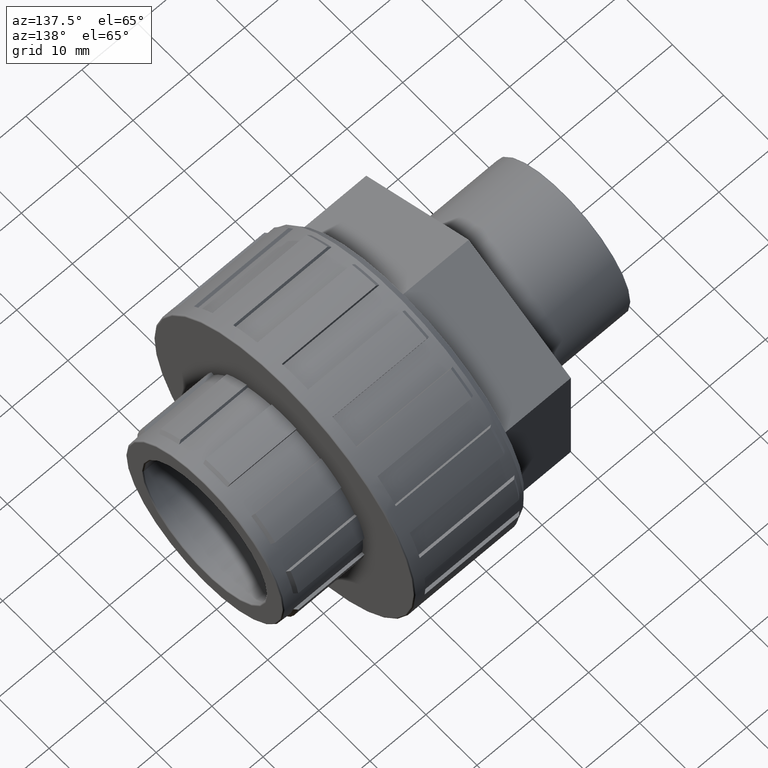
[diagram: clean part render]
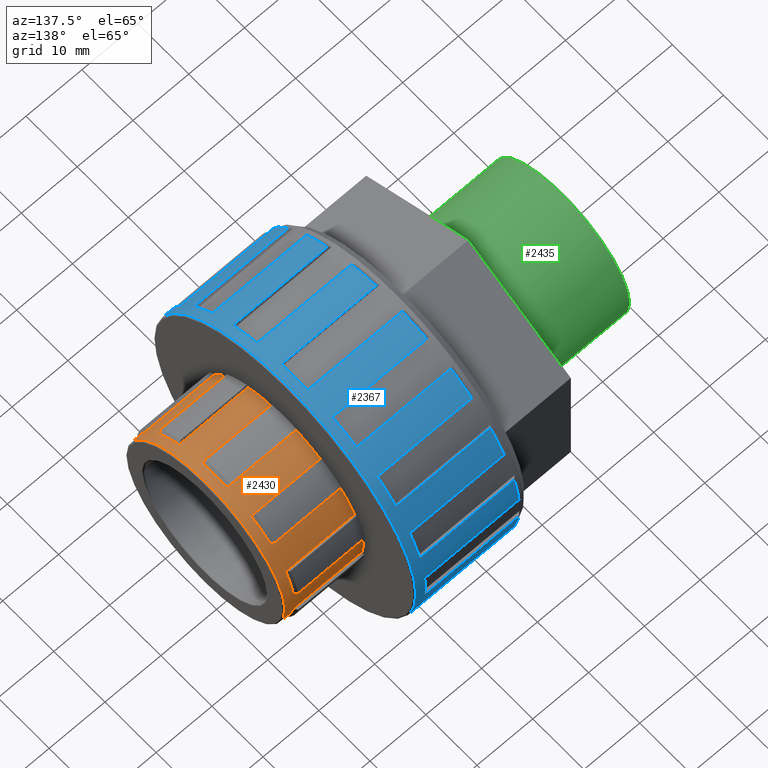
[diagram: same view with three faces highlighted in distinct colors, each labeled with its STEP entity id]
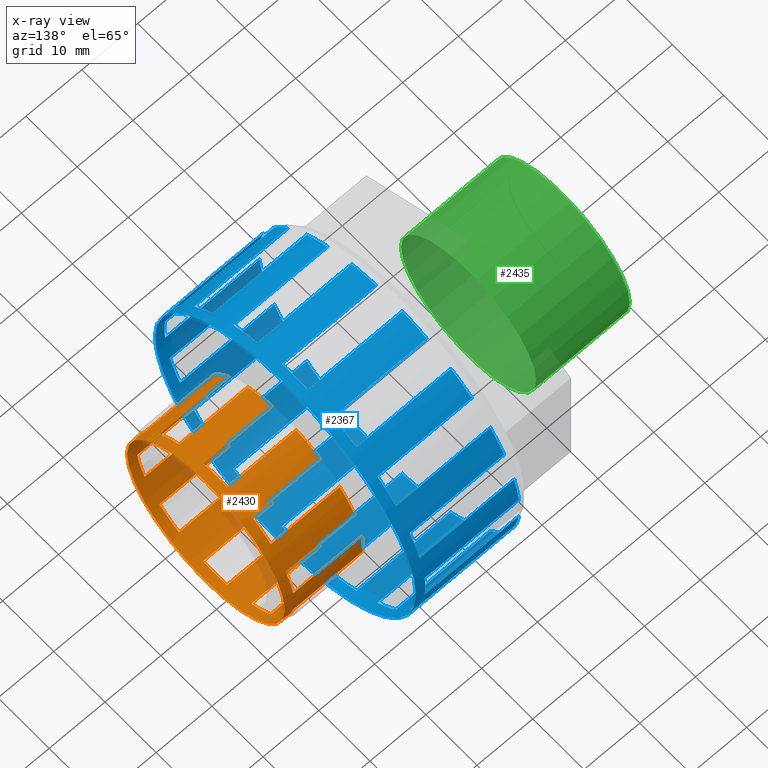
[diagram: x-ray of the same camera — body ghosted, the three highlighted faces saturated]
A machine part, auxiliary view with three faces highlighted in distinct colors.
The next image is the same camera in x-ray (body ghosted, the three faces saturated) — at least one of them is partly hidden behind the body in this view.
Their STEP definitions:

[orange] entity #2430 — the highlighted cylindrical surface (bore or boss wall) has radius 15.4349 mm, axis along (-1, -0, 0).
#54=FACE_BOUND('',#464,.T.);
#81=CYLINDRICAL_SURFACE('',#2674,15.43488);
#169=CIRCLE('',#2629,15.43488);
#170=CIRCLE('',#2631,15.43488);
#171=CIRCLE('',#2633,15.43488);
#172=CIRCLE('',#2635,15.43488);
#173=CIRCLE('',#2637,15.43488);
#174=CIRCLE('',#2639,15.43488);
#175=CIRCLE('',#2641,15.43488);
#176=CIRCLE('',#2643,15.43488);
#177=CIRCLE('',#2645,15.43488);
#179=CIRCLE('',#2648,15.43488);
#182=CIRCLE('',#2655,15.43488);
#183=CIRCLE('',#2656,15.43488);
#184=CIRCLE('',#2657,15.43488);
#185=CIRCLE('',#2658,15.43488);
#186=CIRCLE('',#2659,15.43488);
#187=CIRCLE('',#2660,15.43488);
#188=CIRCLE('',#2661,15.43488);
#189=CIRCLE('',#2662,15.43488);
#190=CIRCLE('',#2663,15.43488);
#191=CIRCLE('',#2664,15.43488);
#196=CIRCLE('',#2673,15.43488);
#324=FACE_OUTER_BOUND('',#463,.T.);
#463=EDGE_LOOP('',(#2080,#2081,#2082,#2083,#2084,#2085,#2086,#2087,#2088,
#2089,#2090,#2091,#2092,#2093,#2094,#2095,#2096,#2097,#2098,#2099,#2100,
#2101,#2102,#2103,#2104,#2105,#2106,#2107,#2108,#2109,#2110,#2111,#2112,
#2113,#2114,#2115,#2116,#2117,#2118,#2119));
#464=EDGE_LOOP('',(#2120));
#643=LINE('',#3869,#869);
#645=LINE('',#3875,#871);
#651=LINE('',#3887,#877);
#653=LINE('',#3893,#879);
#659=LINE('',#3905,#885);
#661=LINE('',#3911,#887);
#667=LINE('',#3923,#893);
#669=LINE('',#3929,#895);
#675=LINE('',#3941,#901);
#677=LINE('',#3947,#903);
#683=LINE('',#3959,#909);
#685=LINE('',#3965,#911);
#691=LINE('',#3977,#917);
#693=LINE('',#3983,#919);
#699=LINE('',#3995,#925);
#701=LINE('',#4001,#927);
#707=LINE('',#4013,#933);
#709=LINE('',#4019,#935);
#716=LINE('',#4085,#942);
#719=LINE('',#4118,#945);
#869=VECTOR('',#3122,12.35);
#871=VECTOR('',#3126,12.35);
#877=VECTOR('',#3134,12.35);
#879=VECTOR('',#3138,12.35);
#885=VECTOR('',#3146,12.35);
#887=VECTOR('',#3150,12.35);
#893=VECTOR('',#3158,12.35);
#895=VECTOR('',#3162,12.35);
#901=VECTOR('',#3170,12.35);
#903=VECTOR('',#3174,12.35);
#909=VECTOR('',#3182,12.35);
#911=VECTOR('',#3186,12.35);
#917=VECTOR('',#3194,12.35);
#919=VECTOR('',#3198,12.35);
#925=VECTOR('',#3206,12.35);
#927=VECTOR('',#3210,12.35);
#933=VECTOR('',#3218,12.35);
#935=VECTOR('',#3222,12.35);
#942=VECTOR('',#3331,12.35);
#945=VECTOR('',#3380,12.35);
#1089=VERTEX_POINT('',#3863);
#1091=VERTEX_POINT('',#3867);
#1092=VERTEX_POINT('',#3871);
#1094=VERTEX_POINT('',#3874);
#1097=VERTEX_POINT('',#3881);
#1099=VERTEX_POINT('',#3885);
#1100=VERTEX_POINT('',#3889);
#1102=VERTEX_POINT('',#3892);
#1105=VERTEX_POINT('',#3899);
#1107=VERTEX_POINT('',#3903);
#1108=VERTEX_POINT('',#3907);
#1110=VERTEX_POINT('',#3910);
#1113=VERTEX_POINT('',#3917);
#1115=VERTEX_POINT('',#3921);
#1116=VERTEX_POINT('',#3925);
#1118=VERTEX_POINT('',#3928);
#1121=VERTEX_POINT('',#3935);
#1123=VERTEX_POINT('',#3939);
#1124=VERTEX_POINT('',#3943);
#1126=VERTEX_POINT('',#3946);
#1129=VERTEX_POINT('',#3953);
#1131=VERTEX_POINT('',#3957);
#1132=VERTEX_POINT('',#3961);
#1134=VERTEX_POINT('',#3964);
#1137=VERTEX_POINT('',#3971);
#1139=VERTEX_POINT('',#3975);
#1140=VERTEX_POINT('',#3979);
#1142=VERTEX_POINT('',#3982);
#1145=VERTEX_POINT('',#3989);
#1147=VERTEX_POINT('',#3993);
#1148=VERTEX_POINT('',#3997);
#1150=VERTEX_POINT('',#4000);
#1153=VERTEX_POINT('',#4007);
#1155=VERTEX_POINT('',#4011);
#1156=VERTEX_POINT('',#4015);
#1158=VERTEX_POINT('',#4018);
#1164=VERTEX_POINT('',#4057);
#1165=VERTEX_POINT('',#4061);
#1166=VERTEX_POINT('',#4084);
#1168=VERTEX_POINT('',#4100);
#1173=VERTEX_POINT('',#4115);
#1398=EDGE_CURVE('',#1089,#1091,#643,.T.);
#1400=EDGE_CURVE('',#1092,#1094,#645,.T.);
#1406=EDGE_CURVE('',#1097,#1099,#651,.T.);
#1408=EDGE_CURVE('',#1100,#1102,#653,.T.);
#1414=EDGE_CURVE('',#1105,#1107,#659,.T.);
#1416=EDGE_CURVE('',#1108,#1110,#661,.T.);
#1422=EDGE_CURVE('',#1113,#1115,#667,.T.);
#1424=EDGE_CURVE('',#1116,#1118,#669,.T.);
#1430=EDGE_CURVE('',#1121,#1123,#675,.T.);
#1432=EDGE_CURVE('',#1124,#1126,#677,.T.);
#1438=EDGE_CURVE('',#1129,#1131,#683,.T.);
#1440=EDGE_CURVE('',#1132,#1134,#685,.T.);
#1446=EDGE_CURVE('',#1137,#1139,#691,.T.);
#1448=EDGE_CURVE('',#1140,#1142,#693,.T.);
#1454=EDGE_CURVE('',#1145,#1147,#699,.T.);
#1456=EDGE_CURVE('',#1148,#1150,#701,.T.);
#1462=EDGE_CURVE('',#1153,#1155,#707,.T.);
#1464=EDGE_CURVE('',#1156,#1158,#709,.T.);
#1487=EDGE_CURVE('',#1089,#1164,#169,.T.);
#1490=EDGE_CURVE('',#1165,#1156,#170,.T.);
#1491=EDGE_CURVE('',#1153,#1148,#171,.T.);
#1492=EDGE_CURVE('',#1145,#1140,#172,.T.);
#1493=EDGE_CURVE('',#1137,#1132,#173,.T.);
#1494=EDGE_CURVE('',#1129,#1124,#174,.T.);
#1495=EDGE_CURVE('',#1121,#1116,#175,.T.);
#1496=EDGE_CURVE('',#1113,#1108,#176,.T.);
#1497=EDGE_CURVE('',#1105,#1100,#177,.T.);
#1499=EDGE_CURVE('',#1097,#1092,#179,.T.);
#1501=EDGE_CURVE('',#1164,#1166,#716,.T.);
#1504=EDGE_CURVE('',#1155,#1158,#182,.T.);
#1505=EDGE_CURVE('',#1147,#1150,#183,.T.);
#1506=EDGE_CURVE('',#1139,#1142,#184,.T.);
#1507=EDGE_CURVE('',#1131,#1134,#185,.T.);
#1508=EDGE_CURVE('',#1123,#1126,#186,.T.);
#1509=EDGE_CURVE('',#1115,#1118,#187,.T.);
#1510=EDGE_CURVE('',#1107,#1110,#188,.T.);
#1511=EDGE_CURVE('',#1099,#1102,#189,.T.);
#1512=EDGE_CURVE('',#1091,#1094,#190,.T.);
#1513=EDGE_CURVE('',#1168,#1166,#191,.T.);
#1519=EDGE_CURVE('',#1173,#1173,#196,.T.);
#1520=EDGE_CURVE('',#1165,#1168,#719,.T.);
#2080=ORIENTED_EDGE('',*,*,#1490,.F.);
#2081=ORIENTED_EDGE('',*,*,#1520,.T.);
#2082=ORIENTED_EDGE('',*,*,#1513,.T.);
#2083=ORIENTED_EDGE('',*,*,#1501,.F.);
#2084=ORIENTED_EDGE('',*,*,#1487,.F.);
#2085=ORIENTED_EDGE('',*,*,#1398,.T.);
#2086=ORIENTED_EDGE('',*,*,#1512,.T.);
#2087=ORIENTED_EDGE('',*,*,#1400,.F.);
#2088=ORIENTED_EDGE('',*,*,#1499,.F.);
#2089=ORIENTED_EDGE('',*,*,#1406,.T.);
#2090=ORIENTED_EDGE('',*,*,#1511,.T.);
#2091=ORIENTED_EDGE('',*,*,#1408,.F.);
#2092=ORIENTED_EDGE('',*,*,#1497,.F.);
#2093=ORIENTED_EDGE('',*,*,#1414,.T.);
#2094=ORIENTED_EDGE('',*,*,#1510,.T.);
#2095=ORIENTED_EDGE('',*,*,#1416,.F.);
#2096=ORIENTED_EDGE('',*,*,#1496,.F.);
#2097=ORIENTED_EDGE('',*,*,#1422,.T.);
#2098=ORIENTED_EDGE('',*,*,#1509,.T.);
#2099=ORIENTED_EDGE('',*,*,#1424,.F.);
#2100=ORIENTED_EDGE('',*,*,#1495,.F.);
#2101=ORIENTED_EDGE('',*,*,#1430,.T.);
#2102=ORIENTED_EDGE('',*,*,#1508,.T.);
#2103=ORIENTED_EDGE('',*,*,#1432,.F.);
#2104=ORIENTED_EDGE('',*,*,#1494,.F.);
#2105=ORIENTED_EDGE('',*,*,#1438,.T.);
#2106=ORIENTED_EDGE('',*,*,#1507,.T.);
#2107=ORIENTED_EDGE('',*,*,#1440,.F.);
#2108=ORIENTED_EDGE('',*,*,#1493,.F.);
#2109=ORIENTED_EDGE('',*,*,#1446,.T.);
#2110=ORIENTED_EDGE('',*,*,#1506,.T.);
#2111=ORIENTED_EDGE('',*,*,#1448,.F.);
#2112=ORIENTED_EDGE('',*,*,#1492,.F.);
#2113=ORIENTED_EDGE('',*,*,#1454,.T.);
#2114=ORIENTED_EDGE('',*,*,#1505,.T.);
#2115=ORIENTED_EDGE('',*,*,#1456,.F.);
#2116=ORIENTED_EDGE('',*,*,#1491,.F.);
#2117=ORIENTED_EDGE('',*,*,#1462,.T.);
#2118=ORIENTED_EDGE('',*,*,#1504,.T.);
#2119=ORIENTED_EDGE('',*,*,#1464,.F.);
#2120=ORIENTED_EDGE('',*,*,#1519,.F.);
#2430=ADVANCED_FACE('',(#324,#54),#81,.T.);
#2629=AXIS2_PLACEMENT_3D('',#4058,#3283,#3284);
#2631=AXIS2_PLACEMENT_3D('',#4063,#3289,#3290);
#2633=AXIS2_PLACEMENT_3D('',#4065,#3293,#3294);
#2635=AXIS2_PLACEMENT_3D('',#4067,#3297,#3298);
#2637=AXIS2_PLACEMENT_3D('',#4069,#3301,#3302);
#2639=AXIS2_PLACEMENT_3D('',#4071,#3305,#3306);
#2641=AXIS2_PLACEMENT_3D('',#4073,#3309,#3310);
#2643=AXIS2_PLACEMENT_3D('',#4075,#3313,#3314);
#2645=AXIS2_PLACEMENT_3D('',#4077,#3317,#3318);
#2648=AXIS2_PLACEMENT_3D('',#4080,#3323,#3324);
#2655=AXIS2_PLACEMENT_3D('',#4091,#3339,#3340);
#2656=AXIS2_PLACEMENT_3D('',#4092,#3341,#3342);
#2657=AXIS2_PLACEMENT_3D('',#4093,#3343,#3344);
#2658=AXIS2_PLACEMENT_3D('',#4094,#3345,#3346);
#2659=AXIS2_PLACEMENT_3D('',#4095,#3347,#3348);
#2660=AXIS2_PLACEMENT_3D('',#4096,#3349,#3350);
#2661=AXIS2_PLACEMENT_3D('',#4097,#3351,#3352);
#2662=AXIS2_PLACEMENT_3D('',#4098,#3353,#3354);
#2663=AXIS2_PLACEMENT_3D('',#4099,#3355,#3356);
#2664=AXIS2_PLACEMENT_3D('',#4101,#3357,#3358);
#2673=AXIS2_PLACEMENT_3D('',#4116,#3376,#3377);
#2674=AXIS2_PLACEMENT_3D('',#4117,#3378,#3379);
#3122=DIRECTION('',(-1.,-2.26017515215961E-16,-4.21850530070947E-17));
#3126=DIRECTION('',(-1.,-2.26017515215961E-16,-4.21850530070947E-17));
#3134=DIRECTION('',(-1.,-1.90132765775102E-16,-6.82568495826952E-17));
#3138=DIRECTION('',(-1.,-1.90132765775102E-16,-6.82568495826952E-17));
#3146=DIRECTION('',(-1.,-1.45776776110653E-16,-6.82568495826952E-17));
#3150=DIRECTION('',(-1.,-1.45776776110653E-16,-6.82568495826952E-17));
#3158=DIRECTION('',(-1.,-1.09892026669794E-16,-4.21850530070947E-17));
#3162=DIRECTION('',(-1.,-1.09892026669794E-16,-4.21850530070947E-17));
#3170=DIRECTION('',(-1.,-9.61852720611601E-17,-6.16297582203915E-33));
#3174=DIRECTION('',(-1.,-9.61852720611601E-17,-6.16297582203915E-33));
#3182=DIRECTION('',(-1.,-1.09892026669794E-16,4.21850530070947E-17));
#3186=DIRECTION('',(-1.,-1.09892026669794E-16,4.21850530070947E-17));
#3194=DIRECTION('',(-1.,-1.45776776110653E-16,6.82568495826952E-17));
#3198=DIRECTION('',(-1.,-1.45776776110653E-16,6.82568495826952E-17));
#3206=DIRECTION('',(-1.,-1.90132765775102E-16,6.82568495826952E-17));
#3210=DIRECTION('',(-1.,-1.90132765775102E-16,6.82568495826952E-17));
#3218=DIRECTION('',(-1.,-2.26017515215961E-16,4.21850530070947E-17));
#3222=DIRECTION('',(-1.,-2.26017515215961E-16,4.21850530070947E-17));
#3283=DIRECTION('center_axis',(-1.,-1.83697019872103E-16,0.));
#3284=DIRECTION('ref_axis',(0.,0.,1.));
#3289=DIRECTION('center_axis',(-1.,-1.83697019872103E-16,0.));
#3290=DIRECTION('ref_axis',(0.,0.,1.));
#3293=DIRECTION('center_axis',(-1.,-1.83697019872103E-16,0.));
#3294=DIRECTION('ref_axis',(0.,0.,1.));
#3297=DIRECTION('center_axis',(-1.,-1.83697019872103E-16,0.));
#3298=DIRECTION('ref_axis',(0.,0.,1.));
#3301=DIRECTION('center_axis',(-1.,-1.83697019872103E-16,0.));
#3302=DIRECTION('ref_axis',(0.,0.,1.));
#3305=DIRECTION('center_axis',(-1.,-1.83697019872103E-16,0.));
#3306=DIRECTION('ref_axis',(0.,0.,1.));
#3309=DIRECTION('center_axis',(-1.,-1.83697019872103E-16,0.));
#3310=DIRECTION('ref_axis',(0.,0.,1.));
#3313=DIRECTION('center_axis',(-1.,-1.83697019872103E-16,0.));
#3314=DIRECTION('ref_axis',(0.,0.,1.));
#3317=DIRECTION('center_axis',(-1.,-1.83697019872103E-16,0.));
#3318=DIRECTION('ref_axis',(0.,0.,1.));
#3323=DIRECTION('center_axis',(-1.,-1.83697019872103E-16,0.));
#3324=DIRECTION('ref_axis',(0.,0.,1.));
#3331=DIRECTION('',(-1.,-2.39724269824595E-16,0.));
#3339=DIRECTION('center_axis',(1.,1.80690517856302E-16,-9.25306175851568E-18));
#3340=DIRECTION('ref_axis',(-9.87213374123839E-17,0.587785252292473,0.809016994374947));
#3341=DIRECTION('center_axis',(1.,1.72819393391689E-16,-1.49717684252802E-17));
#3342=DIRECTION('ref_axis',(-1.59734479348084E-16,0.951056516295154,0.309016994374948));
#3343=DIRECTION('center_axis',(1.,1.63090148494066E-16,-1.49717684252802E-17));
#3344=DIRECTION('ref_axis',(-1.59734479348084E-16,0.951056516295154,-0.309016994374947));
#3345=DIRECTION('center_axis',(1.,1.55219024029453E-16,-9.2530617585157E-18));
#3346=DIRECTION('ref_axis',(-9.87213374123839E-17,0.587785252292473,-0.809016994374947));
#3347=DIRECTION('center_axis',(1.,1.52212522013652E-16,-7.70371977754894E-33));
#3348=DIRECTION('ref_axis',(0.,2.15788465726683E-16,-1.));
#3349=DIRECTION('center_axis',(1.,1.55219024029453E-16,9.25306175851568E-18));
#3350=DIRECTION('ref_axis',(9.87213374123838E-17,-0.587785252292473,-0.809016994374947));
#3351=DIRECTION('center_axis',(1.,1.63090148494066E-16,1.49717684252803E-17));
#3352=DIRECTION('ref_axis',(1.59734479348084E-16,-0.951056516295154,-0.309016994374948));
#3353=DIRECTION('center_axis',(1.,1.72819393391689E-16,1.49717684252803E-17));
#3354=DIRECTION('ref_axis',(1.59734479348084E-16,-0.951056516295154,0.309016994374947));
#3355=DIRECTION('center_axis',(1.,1.80690517856302E-16,9.2530617585157E-18));
#3356=DIRECTION('ref_axis',(9.87213374123839E-17,-0.587785252292473,0.809016994374947));
#3357=DIRECTION('center_axis',(1.,1.83697019872103E-16,0.));
#3358=DIRECTION('ref_axis',(0.,0.,1.));
#3376=DIRECTION('center_axis',(1.,1.83697019872103E-16,0.));
#3377=DIRECTION('ref_axis',(-1.84319314474875E-16,1.,6.12323399573677E-17));
#3378=DIRECTION('center_axis',(-1.,-1.83697019872103E-16,0.));
#3379=DIRECTION('ref_axis',(1.67954770942878E-16,-1.,0.));
#3380=DIRECTION('',(-1.,-2.39724269824595E-16,0.));
#3863=CARTESIAN_POINT('',(30.25,13.7792291011898,6.9547369462349));
#3867=CARTESIAN_POINT('',(17.9,13.7792291011898,6.9547369462349));
#3869=CARTESIAN_POINT('',(30.25,13.7792291011898,6.9547369462349));
#3871=CARTESIAN_POINT('',(30.25,10.8723638534888,10.9556937184165));
#3874=CARTESIAN_POINT('',(17.9,10.8723638534888,10.9556937184165));
#3875=CARTESIAN_POINT('',(30.25,10.8723638534888,10.9556937184165));
#3881=CARTESIAN_POINT('',(30.25,7.05973870167792,13.72572803455));
#3885=CARTESIAN_POINT('',(17.9,7.05973870167792,13.72572803455));
#3887=CARTESIAN_POINT('',(30.25,7.05973870167792,13.72572803455));
#3889=CARTESIAN_POINT('',(30.25,2.35633193018189,15.2539575340043));
#3892=CARTESIAN_POINT('',(17.9,2.35633193018188,15.2539575340043));
#3893=CARTESIAN_POINT('',(30.25,2.35633193018189,15.2539575340043));
#3899=CARTESIAN_POINT('',(30.25,-2.35633193018187,15.2539575340043));
#3903=CARTESIAN_POINT('',(17.9,-2.35633193018187,15.2539575340043));
#3905=CARTESIAN_POINT('',(30.25,-2.35633193018187,15.2539575340043));
#3907=CARTESIAN_POINT('',(30.25,-7.0597387016779,13.72572803455));
#3910=CARTESIAN_POINT('',(17.9,-7.0597387016779,13.72572803455));
#3911=CARTESIAN_POINT('',(30.25,-7.0597387016779,13.72572803455));
#3917=CARTESIAN_POINT('',(30.25,-10.8723638534888,10.9556937184165));
#3921=CARTESIAN_POINT('',(17.9,-10.8723638534888,10.9556937184165));
#3923=CARTESIAN_POINT('',(30.25,-10.8723638534888,10.9556937184165));
#3925=CARTESIAN_POINT('',(30.25,-13.7792291011898,6.95473694623489));
#3928=CARTESIAN_POINT('',(17.9,-13.7792291011898,6.95473694623489));
#3929=CARTESIAN_POINT('',(30.25,-13.7792291011898,6.95473694623489));
#3935=CARTESIAN_POINT('',(30.25,-15.2355223228188,2.47272727272727));
#3939=CARTESIAN_POINT('',(17.9,-15.2355223228188,2.47272727272727));
#3941=CARTESIAN_POINT('',(30.25,-15.2355223228188,2.47272727272727));
#3943=CARTESIAN_POINT('',(30.25,-15.2355223228188,-2.47272727272727));
#3946=CARTESIAN_POINT('',(17.9,-15.2355223228188,-2.47272727272727));
#3947=CARTESIAN_POINT('',(30.25,-15.2355223228188,-2.47272727272727));
#3953=CARTESIAN_POINT('',(30.25,-13.7792291011898,-6.9547369462349));
#3957=CARTESIAN_POINT('',(17.9,-13.7792291011898,-6.9547369462349));
#3959=CARTESIAN_POINT('',(30.25,-13.7792291011898,-6.9547369462349));
#3961=CARTESIAN_POINT('',(30.25,-10.8723638534888,-10.9556937184165));
#3964=CARTESIAN_POINT('',(17.9,-10.8723638534888,-10.9556937184165));
#3965=CARTESIAN_POINT('',(30.25,-10.8723638534888,-10.9556937184165));
#3971=CARTESIAN_POINT('',(30.25,-7.0597387016779,-13.72572803455));
#3975=CARTESIAN_POINT('',(17.9,-7.0597387016779,-13.72572803455));
#3977=CARTESIAN_POINT('',(30.25,-7.0597387016779,-13.72572803455));
#3979=CARTESIAN_POINT('',(30.25,-2.35633193018187,-15.2539575340043));
#3982=CARTESIAN_POINT('',(17.9,-2.35633193018187,-15.2539575340043));
#3983=CARTESIAN_POINT('',(30.25,-2.35633193018187,-15.2539575340043));
#3989=CARTESIAN_POINT('',(30.25,2.35633193018189,-15.2539575340043));
#3993=CARTESIAN_POINT('',(17.9,2.35633193018189,-15.2539575340043));
#3995=CARTESIAN_POINT('',(30.25,2.35633193018189,-15.2539575340043));
#3997=CARTESIAN_POINT('',(30.25,7.05973870167792,-13.72572803455));
#4000=CARTESIAN_POINT('',(17.9,7.05973870167792,-13.72572803455));
#4001=CARTESIAN_POINT('',(30.25,7.05973870167792,-13.72572803455));
#4007=CARTESIAN_POINT('',(30.25,10.8723638534888,-10.9556937184165));
#4011=CARTESIAN_POINT('',(17.9,10.8723638534888,-10.9556937184165));
#4013=CARTESIAN_POINT('',(30.25,10.8723638534888,-10.9556937184165));
#4015=CARTESIAN_POINT('',(30.25,13.7792291011898,-6.95473694623489));
#4018=CARTESIAN_POINT('',(17.9,13.7792291011898,-6.95473694623489));
#4019=CARTESIAN_POINT('',(30.25,13.7792291011898,-6.95473694623489));
#4057=CARTESIAN_POINT('',(30.25,15.2355223228188,2.47272727272727));
#4058=CARTESIAN_POINT('Origin',(30.25,1.14626940400192E-14,0.));
#4061=CARTESIAN_POINT('',(30.25,15.2355223228188,-2.47272727272727));
#4063=CARTESIAN_POINT('Origin',(30.25,1.14626940400192E-14,0.));
#4065=CARTESIAN_POINT('Origin',(30.25,1.14626940400192E-14,0.));
#4067=CARTESIAN_POINT('Origin',(30.25,1.14626940400192E-14,0.));
#4069=CARTESIAN_POINT('Origin',(30.25,1.14626940400192E-14,0.));
#4071=CARTESIAN_POINT('Origin',(30.25,1.14626940400192E-14,0.));
#4073=CARTESIAN_POINT('Origin',(30.25,1.14626940400192E-14,0.));
#4075=CARTESIAN_POINT('Origin',(30.25,1.14626940400192E-14,0.));
#4077=CARTESIAN_POINT('Origin',(30.25,1.14626940400192E-14,0.));
#4080=CARTESIAN_POINT('Origin',(30.25,1.14626940400192E-14,0.));
#4084=CARTESIAN_POINT('',(17.9,15.2355223228188,2.47272727272727));
#4085=CARTESIAN_POINT('',(30.25,15.2355223228188,2.47272727272727));
#4091=CARTESIAN_POINT('Origin',(17.9,8.65281257715454E-15,4.63847748278783E-16));
#4092=CARTESIAN_POINT('Origin',(17.9,9.04738503918016E-15,7.50521422320178E-16));
#4093=CARTESIAN_POINT('Origin',(17.9,9.53510342429328E-15,7.50521422320177E-16));
#4094=CARTESIAN_POINT('Origin',(17.9,9.92967588631891E-15,4.63847748278782E-16));
#4095=CARTESIAN_POINT('Origin',(17.9,1.0080389155788E-14,0.));
#4096=CARTESIAN_POINT('Origin',(17.9,9.92967588631891E-15,-4.63847748278786E-16));
#4097=CARTESIAN_POINT('Origin',(17.9,9.53510342429328E-15,-7.50521422320178E-16));
#4098=CARTESIAN_POINT('Origin',(17.9,9.04738503918016E-15,-7.50521422320179E-16));
#4099=CARTESIAN_POINT('Origin',(17.9,8.65281257715454E-15,-4.63847748278783E-16));
#4100=CARTESIAN_POINT('',(17.9,15.2355223228188,-2.47272727272727));
#4101=CARTESIAN_POINT('Origin',(17.9,8.50209930768548E-15,0.));
#4115=CARTESIAN_POINT('',(31.90883,-15.43488,-2.83534145808353E-15));
#4116=CARTESIAN_POINT('Origin',(31.90883,1.17674161674937E-14,0.));
#4117=CARTESIAN_POINT('Origin',(31.2,1.16372062088977E-14,0.));
#4118=CARTESIAN_POINT('',(30.25,15.2355223228188,-2.47272727272727));

[blue] entity #2367 — the highlighted cylindrical surface (bore or boss wall) has radius 25.5 mm, axis along (-1, -0, 0).
#47=FACE_BOUND('',#394,.T.);
#69=CYLINDRICAL_SURFACE('',#2531,25.5);
#88=CIRCLE('',#2460,25.5);
#90=CIRCLE('',#2465,25.5);
#92=CIRCLE('',#2470,25.5);
#94=CIRCLE('',#2475,25.5);
#96=CIRCLE('',#2480,25.5);
#98=CIRCLE('',#2485,25.5);
#100=CIRCLE('',#2490,25.5);
#102=CIRCLE('',#2495,25.5);
#104=CIRCLE('',#2500,25.5);
#106=CIRCLE('',#2505,25.5);
#108=CIRCLE('',#2510,25.5);
#110=CIRCLE('',#2515,25.5);
#112=CIRCLE('',#2520,25.5);
#114=CIRCLE('',#2525,25.5);
#116=CIRCLE('',#2530,25.5);
#117=CIRCLE('',#2532,25.5);
#118=CIRCLE('',#2533,25.5);
#119=CIRCLE('',#2534,25.5);
#120=CIRCLE('',#2535,25.5);
#121=CIRCLE('',#2536,25.5);
#122=CIRCLE('',#2537,25.5);
#123=CIRCLE('',#2538,25.5);
#124=CIRCLE('',#2539,25.5);
#125=CIRCLE('',#2540,25.5);
#126=CIRCLE('',#2541,25.5);
#127=CIRCLE('',#2542,25.5);
#128=CIRCLE('',#2543,25.5);
#129=CIRCLE('',#2544,25.5);
#130=CIRCLE('',#2545,25.5);
#131=CIRCLE('',#2546,25.5);
#132=CIRCLE('',#2547,25.5);
#133=CIRCLE('',#2548,25.5);
#134=CIRCLE('',#2549,25.5);
#261=FACE_OUTER_BOUND('',#393,.T.);
#393=EDGE_LOOP('',(#1740,#1741,#1742,#1743,#1744,#1745,#1746,#1747,#1748,
#1749,#1750,#1751,#1752,#1753,#1754,#1755,#1756,#1757,#1758,#1759,#1760,
#1761,#1762,#1763,#1764,#1765,#1766,#1767,#1768,#1769,#1770,#1771,#1772,
#1773,#1774,#1775,#1776,#1777,#1778,#1779,#1780,#1781,#1782,#1783,#1784,
#1785,#1786,#1787,#1788,#1789,#1790,#1791,#1792,#1793,#1794,#1795,#1796,
#1797,#1798,#1799,#1800,#1801,#1802,#1803));
#394=EDGE_LOOP('',(#1804));
#515=LINE('',#3485,#741);
#521=LINE('',#3497,#747);
#523=LINE('',#3506,#749);
#529=LINE('',#3518,#755);
#531=LINE('',#3527,#757);
#537=LINE('',#3539,#763);
#539=LINE('',#3548,#765);
#545=LINE('',#3560,#771);
#547=LINE('',#3569,#773);
#553=LINE('',#3581,#779);
#555=LINE('',#3590,#781);
#561=LINE('',#3602,#787);
#563=LINE('',#3611,#789);
#569=LINE('',#3623,#795);
#571=LINE('',#3632,#797);
#577=LINE('',#3644,#803);
#579=LINE('',#3653,#805);
#585=LINE('',#3665,#811);
#587=LINE('',#3674,#813);
#593=LINE('',#3686,#819);
#595=LINE('',#3695,#821);
#601=LINE('',#3707,#827);
#603=LINE('',#3716,#829);
#609=LINE('',#3728,#835);
#611=LINE('',#3737,#837);
#617=LINE('',#3749,#843);
#619=LINE('',#3758,#845);
#625=LINE('',#3770,#851);
#627=LINE('',#3779,#853);
#633=LINE('',#3791,#859);
#634=LINE('',#3813,#860);
#635=LINE('',#3817,#861);
#741=VECTOR('',#2740,16.905);
#747=VECTOR('',#2748,16.905);
#749=VECTOR('',#2758,16.905);
#755=VECTOR('',#2766,16.905);
#757=VECTOR('',#2776,16.905);
#763=VECTOR('',#2784,16.905);
#765=VECTOR('',#2794,16.905);
#771=VECTOR('',#2802,16.905);
#773=VECTOR('',#2812,16.905);
#779=VECTOR('',#2820,16.905);
#781=VECTOR('',#2830,16.905);
#787=VECTOR('',#2838,16.905);
#789=VECTOR('',#2848,16.905);
#795=VECTOR('',#2856,16.905);
#797=VECTOR('',#2866,16.905);
#803=VECTOR('',#2874,16.905);
#805=VECTOR('',#2884,16.905);
#811=VECTOR('',#2892,16.905);
#813=VECTOR('',#2902,16.905);
#819=VECTOR('',#2910,16.905);
#821=VECTOR('',#2920,16.905);
#827=VECTOR('',#2928,16.905);
#829=VECTOR('',#2938,16.905);
#835=VECTOR('',#2946,16.905);
#837=VECTOR('',#2956,16.905);
#843=VECTOR('',#2964,16.905);
#845=VECTOR('',#2974,16.905);
#851=VECTOR('',#2982,16.905);
#853=VECTOR('',#2992,16.905);
#859=VECTOR('',#3000,16.905);
#860=VECTOR('',#3039,16.905);
#861=VECTOR('',#3042,16.905);
#960=VERTEX_POINT('',#3481);
#962=VERTEX_POINT('',#3484);
#965=VERTEX_POINT('',#3491);
#967=VERTEX_POINT('',#3495);
#968=VERTEX_POINT('',#3502);
#970=VERTEX_POINT('',#3505);
#973=VERTEX_POINT('',#3512);
#975=VERTEX_POINT('',#3516);
#976=VERTEX_POINT('',#3523);
#978=VERTEX_POINT('',#3526);
#981=VERTEX_POINT('',#3533);
#983=VERTEX_POINT('',#3537);
#984=VERTEX_POINT('',#3544);
#986=VERTEX_POINT('',#3547);
#989=VERTEX_POINT('',#3554);
#991=VERTEX_POINT('',#3558);
#992=VERTEX_POINT('',#3565);
#994=VERTEX_POINT('',#3568);
#997=VERTEX_POINT('',#3575);
#999=VERTEX_POINT('',#3579);
#1000=VERTEX_POINT('',#3586);
#1002=VERTEX_POINT('',#3589);
#1005=VERTEX_POINT('',#3596);
#1007=VERTEX_POINT('',#3600);
#1008=VERTEX_POINT('',#3607);
#1010=VERTEX_POINT('',#3610);
#1013=VERTEX_POINT('',#3617);
#1015=VERTEX_POINT('',#3621);
#1016=VERTEX_POINT('',#3628);
#1018=VERTEX_POINT('',#3631);
#1021=VERTEX_POINT('',#3638);
#1023=VERTEX_POINT('',#3642);
#1024=VERTEX_POINT('',#3649);
#1026=VERTEX_POINT('',#3652);
#1029=VERTEX_POINT('',#3659);
#1031=VERTEX_POINT('',#3663);
#1032=VERTEX_POINT('',#3670);
#1034=VERTEX_POINT('',#3673);
#1037=VERTEX_POINT('',#3680);
#1039=VERTEX_POINT('',#3684);
#1040=VERTEX_POINT('',#3691);
#1042=VERTEX_POINT('',#3694);
#1045=VERTEX_POINT('',#3701);
#1047=VERTEX_POINT('',#3705);
#1048=VERTEX_POINT('',#3712);
#1050=VERTEX_POINT('',#3715);
#1053=VERTEX_POINT('',#3722);
#1055=VERTEX_POINT('',#3726);
#1056=VERTEX_POINT('',#3733);
#1058=VERTEX_POINT('',#3736);
#1061=VERTEX_POINT('',#3743);
#1063=VERTEX_POINT('',#3747);
#1064=VERTEX_POINT('',#3754);
#1066=VERTEX_POINT('',#3757);
#1069=VERTEX_POINT('',#3764);
#1071=VERTEX_POINT('',#3768);
#1072=VERTEX_POINT('',#3775);
#1074=VERTEX_POINT('',#3778);
#1077=VERTEX_POINT('',#3785);
#1079=VERTEX_POINT('',#3789);
#1080=VERTEX_POINT('',#3810);
#1081=VERTEX_POINT('',#3812);
#1082=VERTEX_POINT('',#3814);
#1083=VERTEX_POINT('',#3816);
#1084=VERTEX_POINT('',#3819);
#1206=EDGE_CURVE('',#962,#960,#515,.T.);
#1212=EDGE_CURVE('',#965,#967,#521,.T.);
#1214=EDGE_CURVE('',#967,#962,#88,.T.);
#1216=EDGE_CURVE('',#970,#968,#523,.T.);
#1222=EDGE_CURVE('',#973,#975,#529,.T.);
#1224=EDGE_CURVE('',#975,#970,#90,.T.);
#1226=EDGE_CURVE('',#978,#976,#531,.T.);
#1232=EDGE_CURVE('',#981,#983,#537,.T.);
#1234=EDGE_CURVE('',#983,#978,#92,.T.);
#1236=EDGE_CURVE('',#986,#984,#539,.T.);
#1242=EDGE_CURVE('',#989,#991,#545,.T.);
#1244=EDGE_CURVE('',#991,#986,#94,.T.);
#1246=EDGE_CURVE('',#994,#992,#547,.T.);
#1252=EDGE_CURVE('',#997,#999,#553,.T.);
#1254=EDGE_CURVE('',#999,#994,#96,.T.);
#1256=EDGE_CURVE('',#1002,#1000,#555,.T.);
#1262=EDGE_CURVE('',#1005,#1007,#561,.T.);
#1264=EDGE_CURVE('',#1007,#1002,#98,.T.);
#1266=EDGE_CURVE('',#1010,#1008,#563,.T.);
#1272=EDGE_CURVE('',#1013,#1015,#569,.T.);
#1274=EDGE_CURVE('',#1015,#1010,#100,.T.);
#1276=EDGE_CURVE('',#1018,#1016,#571,.T.);
#1282=EDGE_CURVE('',#1021,#1023,#577,.T.);
#1284=EDGE_CURVE('',#1023,#1018,#102,.T.);
#1286=EDGE_CURVE('',#1026,#1024,#579,.T.);
#1292=EDGE_CURVE('',#1029,#1031,#585,.T.);
#1294=EDGE_CURVE('',#1031,#1026,#104,.T.);
#1296=EDGE_CURVE('',#1034,#1032,#587,.T.);
#1302=EDGE_CURVE('',#1037,#1039,#593,.T.);
#1304=EDGE_CURVE('',#1039,#1034,#106,.T.);
#1306=EDGE_CURVE('',#1042,#1040,#595,.T.);
#1312=EDGE_CURVE('',#1045,#1047,#601,.T.);
#1314=EDGE_CURVE('',#1047,#1042,#108,.T.);
#1316=EDGE_CURVE('',#1050,#1048,#603,.T.);
#1322=EDGE_CURVE('',#1053,#1055,#609,.T.);
#1324=EDGE_CURVE('',#1055,#1050,#110,.T.);
#1326=EDGE_CURVE('',#1058,#1056,#611,.T.);
#1332=EDGE_CURVE('',#1061,#1063,#617,.T.);
#1334=EDGE_CURVE('',#1063,#1058,#112,.T.);
#1336=EDGE_CURVE('',#1066,#1064,#619,.T.);
#1342=EDGE_CURVE('',#1069,#1071,#625,.T.);
#1344=EDGE_CURVE('',#1071,#1066,#114,.T.);
#1346=EDGE_CURVE('',#1074,#1072,#627,.T.);
#1352=EDGE_CURVE('',#1077,#1079,#633,.T.);
#1354=EDGE_CURVE('',#1079,#1074,#116,.T.);
#1355=EDGE_CURVE('',#973,#960,#117,.T.);
#1356=EDGE_CURVE('',#981,#968,#118,.T.);
#1357=EDGE_CURVE('',#989,#976,#119,.T.);
#1358=EDGE_CURVE('',#997,#984,#120,.T.);
#1359=EDGE_CURVE('',#1005,#992,#121,.T.);
#1360=EDGE_CURVE('',#1013,#1000,#122,.T.);
#1361=EDGE_CURVE('',#1021,#1008,#123,.T.);
#1362=EDGE_CURVE('',#1029,#1016,#124,.T.);
#1363=EDGE_CURVE('',#1037,#1024,#125,.T.);
#1364=EDGE_CURVE('',#1045,#1032,#126,.T.);
#1365=EDGE_CURVE('',#1053,#1040,#127,.T.);
#1366=EDGE_CURVE('',#1061,#1048,#128,.T.);
#1367=EDGE_CURVE('',#1069,#1056,#129,.T.);
#1368=EDGE_CURVE('',#1077,#1064,#130,.T.);
#1369=EDGE_CURVE('',#1080,#1072,#131,.T.);
#1370=EDGE_CURVE('',#1080,#1081,#634,.T.);
#1371=EDGE_CURVE('',#1081,#1082,#132,.T.);
#1372=EDGE_CURVE('',#1082,#1083,#635,.T.);
#1373=EDGE_CURVE('',#965,#1083,#133,.T.);
#1374=EDGE_CURVE('',#1084,#1084,#134,.T.);
#1740=ORIENTED_EDGE('',*,*,#1212,.T.);
#1741=ORIENTED_EDGE('',*,*,#1214,.T.);
#1742=ORIENTED_EDGE('',*,*,#1206,.T.);
#1743=ORIENTED_EDGE('',*,*,#1355,.F.);
#1744=ORIENTED_EDGE('',*,*,#1222,.T.);
#1745=ORIENTED_EDGE('',*,*,#1224,.T.);
#1746=ORIENTED_EDGE('',*,*,#1216,.T.);
#1747=ORIENTED_EDGE('',*,*,#1356,.F.);
#1748=ORIENTED_EDGE('',*,*,#1232,.T.);
#1749=ORIENTED_EDGE('',*,*,#1234,.T.);
#1750=ORIENTED_EDGE('',*,*,#1226,.T.);
#1751=ORIENTED_EDGE('',*,*,#1357,.F.);
#1752=ORIENTED_EDGE('',*,*,#1242,.T.);
#1753=ORIENTED_EDGE('',*,*,#1244,.T.);
#1754=ORIENTED_EDGE('',*,*,#1236,.T.);
#1755=ORIENTED_EDGE('',*,*,#1358,.F.);
#1756=ORIENTED_EDGE('',*,*,#1252,.T.);
#1757=ORIENTED_EDGE('',*,*,#1254,.T.);
#1758=ORIENTED_EDGE('',*,*,#1246,.T.);
#1759=ORIENTED_EDGE('',*,*,#1359,.F.);
#1760=ORIENTED_EDGE('',*,*,#1262,.T.);
#1761=ORIENTED_EDGE('',*,*,#1264,.T.);
#1762=ORIENTED_EDGE('',*,*,#1256,.T.);
#1763=ORIENTED_EDGE('',*,*,#1360,.F.);
#1764=ORIENTED_EDGE('',*,*,#1272,.T.);
#1765=ORIENTED_EDGE('',*,*,#1274,.T.);
#1766=ORIENTED_EDGE('',*,*,#1266,.T.);
#1767=ORIENTED_EDGE('',*,*,#1361,.F.);
#1768=ORIENTED_EDGE('',*,*,#1282,.T.);
#1769=ORIENTED_EDGE('',*,*,#1284,.T.);
#1770=ORIENTED_EDGE('',*,*,#1276,.T.);
#1771=ORIENTED_EDGE('',*,*,#1362,.F.);
#1772=ORIENTED_EDGE('',*,*,#1292,.T.);
#1773=ORIENTED_EDGE('',*,*,#1294,.T.);
#1774=ORIENTED_EDGE('',*,*,#1286,.T.);
#1775=ORIENTED_EDGE('',*,*,#1363,.F.);
#1776=ORIENTED_EDGE('',*,*,#1302,.T.);
#1777=ORIENTED_EDGE('',*,*,#1304,.T.);
#1778=ORIENTED_EDGE('',*,*,#1296,.T.);
#1779=ORIENTED_EDGE('',*,*,#1364,.F.);
#1780=ORIENTED_EDGE('',*,*,#1312,.T.);
#1781=ORIENTED_EDGE('',*,*,#1314,.T.);
#1782=ORIENTED_EDGE('',*,*,#1306,.T.);
#1783=ORIENTED_EDGE('',*,*,#1365,.F.);
#1784=ORIENTED_EDGE('',*,*,#1322,.T.);
#1785=ORIENTED_EDGE('',*,*,#1324,.T.);
#1786=ORIENTED_EDGE('',*,*,#1316,.T.);
#1787=ORIENTED_EDGE('',*,*,#1366,.F.);
#1788=ORIENTED_EDGE('',*,*,#1332,.T.);
#1789=ORIENTED_EDGE('',*,*,#1334,.T.);
#1790=ORIENTED_EDGE('',*,*,#1326,.T.);
#1791=ORIENTED_EDGE('',*,*,#1367,.F.);
#1792=ORIENTED_EDGE('',*,*,#1342,.T.);
#1793=ORIENTED_EDGE('',*,*,#1344,.T.);
#1794=ORIENTED_EDGE('',*,*,#1336,.T.);
#1795=ORIENTED_EDGE('',*,*,#1368,.F.);
#1796=ORIENTED_EDGE('',*,*,#1352,.T.);
#1797=ORIENTED_EDGE('',*,*,#1354,.T.);
#1798=ORIENTED_EDGE('',*,*,#1346,.T.);
#1799=ORIENTED_EDGE('',*,*,#1369,.F.);
#1800=ORIENTED_EDGE('',*,*,#1370,.T.);
#1801=ORIENTED_EDGE('',*,*,#1371,.T.);
#1802=ORIENTED_EDGE('',*,*,#1372,.T.);
#1803=ORIENTED_EDGE('',*,*,#1373,.F.);
#1804=ORIENTED_EDGE('',*,*,#1374,.F.);
#2367=ADVANCED_FACE('',(#261,#47),#69,.T.);
#2460=AXIS2_PLACEMENT_3D('',#3500,#2753,#2754);
#2465=AXIS2_PLACEMENT_3D('',#3521,#2771,#2772);
#2470=AXIS2_PLACEMENT_3D('',#3542,#2789,#2790);
#2475=AXIS2_PLACEMENT_3D('',#3563,#2807,#2808);
#2480=AXIS2_PLACEMENT_3D('',#3584,#2825,#2826);
#2485=AXIS2_PLACEMENT_3D('',#3605,#2843,#2844);
#2490=AXIS2_PLACEMENT_3D('',#3626,#2861,#2862);
#2495=AXIS2_PLACEMENT_3D('',#3647,#2879,#2880);
#2500=AXIS2_PLACEMENT_3D('',#3668,#2897,#2898);
#2505=AXIS2_PLACEMENT_3D('',#3689,#2915,#2916);
#2510=AXIS2_PLACEMENT_3D('',#3710,#2933,#2934);
#2515=AXIS2_PLACEMENT_3D('',#3731,#2951,#2952);
#2520=AXIS2_PLACEMENT_3D('',#3752,#2969,#2970);
#2525=AXIS2_PLACEMENT_3D('',#3773,#2987,#2988);
#2530=AXIS2_PLACEMENT_3D('',#3794,#3005,#3006);
#2531=AXIS2_PLACEMENT_3D('',#3795,#3007,#3008);
#2532=AXIS2_PLACEMENT_3D('',#3796,#3009,#3010);
#2533=AXIS2_PLACEMENT_3D('',#3797,#3011,#3012);
#2534=AXIS2_PLACEMENT_3D('',#3798,#3013,#3014);
#2535=AXIS2_PLACEMENT_3D('',#3799,#3015,#3016);
#2536=AXIS2_PLACEMENT_3D('',#3800,#3017,#3018);
#2537=AXIS2_PLACEMENT_3D('',#3801,#3019,#3020);
#2538=AXIS2_PLACEMENT_3D('',#3802,#3021,#3022);
#2539=AXIS2_PLACEMENT_3D('',#3803,#3023,#3024);
#2540=AXIS2_PLACEMENT_3D('',#3804,#3025,#3026);
#2541=AXIS2_PLACEMENT_3D('',#3805,#3027,#3028);
#2542=AXIS2_PLACEMENT_3D('',#3806,#3029,#3030);
#2543=AXIS2_PLACEMENT_3D('',#3807,#3031,#3032);
#2544=AXIS2_PLACEMENT_3D('',#3808,#3033,#3034);
#2545=AXIS2_PLACEMENT_3D('',#3809,#3035,#3036);
#2546=AXIS2_PLACEMENT_3D('',#3811,#3037,#3038);
#2547=AXIS2_PLACEMENT_3D('',#3815,#3040,#3041);
#2548=AXIS2_PLACEMENT_3D('',#3818,#3043,#3044);
#2549=AXIS2_PLACEMENT_3D('',#3820,#3045,#3046);
#2740=DIRECTION('',(-1.,-1.83697019872103E-16,0.));
#2748=DIRECTION('',(1.,1.83697019872103E-16,0.));
#2753=DIRECTION('center_axis',(1.,1.82498712524287E-16,6.02429785338166E-18));
#2754=DIRECTION('ref_axis',(1.67954770942878E-16,-1.,0.));
#2758=DIRECTION('',(-1.,-1.83697019872103E-16,0.));
#2766=DIRECTION('',(1.,1.83697019872103E-16,0.));
#2771=DIRECTION('center_axis',(1.,1.7908622191186E-16,1.1131450968982E-17));
#2772=DIRECTION('ref_axis',(1.67954770942878E-16,-1.,0.));
#2776=DIRECTION('',(-1.,-1.83697019872103E-16,0.));
#2784=DIRECTION('',(1.,1.83697019872103E-16,0.));
#2789=DIRECTION('center_axis',(1.,1.73979068796259E-16,1.45439415814091E-17));
#2790=DIRECTION('ref_axis',(1.67954770942878E-16,-1.,0.));
#2794=DIRECTION('',(-1.,-1.83697019872103E-16,0.));
#2802=DIRECTION('',(1.,1.83697019872103E-16,0.));
#2807=DIRECTION('center_axis',(1.,1.67954770942878E-16,1.57422489292254E-17));
#2808=DIRECTION('ref_axis',(1.67954770942878E-16,-1.,0.));
#2812=DIRECTION('',(-1.,-1.83697019872103E-16,0.));
#2820=DIRECTION('',(1.,1.83697019872103E-16,0.));
#2825=DIRECTION('center_axis',(1.,1.61930473089496E-16,1.45439415814091E-17));
#2826=DIRECTION('ref_axis',(1.67954770942878E-16,-1.,0.));
#2830=DIRECTION('',(-1.,-1.83697019872103E-16,0.));
#2838=DIRECTION('',(1.,1.83697019872103E-16,0.));
#2843=DIRECTION('center_axis',(1.,1.56823319973896E-16,1.1131450968982E-17));
#2844=DIRECTION('ref_axis',(1.67954770942878E-16,-1.,0.));
#2848=DIRECTION('',(-1.,-1.83697019872103E-16,0.));
#2856=DIRECTION('',(1.,1.83697019872103E-16,0.));
#2861=DIRECTION('center_axis',(1.,1.53410829361468E-16,6.02429785338165E-18));
#2862=DIRECTION('ref_axis',(1.67954770942878E-16,-1.,0.));
#2866=DIRECTION('',(-1.,-1.83697019872103E-16,0.));
#2874=DIRECTION('',(1.,1.83697019872103E-16,0.));
#2879=DIRECTION('center_axis',(1.,1.52212522013652E-16,1.54074395550979E-33));
#2880=DIRECTION('ref_axis',(1.67954770942878E-16,-1.,0.));
#2884=DIRECTION('',(-1.,-1.83697019872103E-16,0.));
#2892=DIRECTION('',(1.,1.83697019872103E-16,0.));
#2897=DIRECTION('center_axis',(1.,1.53410829361468E-16,-6.02429785338166E-18));
#2898=DIRECTION('ref_axis',(1.67954770942878E-16,-1.,0.));
#2902=DIRECTION('',(-1.,-1.83697019872103E-16,0.));
#2910=DIRECTION('',(1.,1.83697019872103E-16,0.));
#2915=DIRECTION('center_axis',(1.,1.56823319973896E-16,-1.1131450968982E-17));
#2916=DIRECTION('ref_axis',(1.67954770942878E-16,-1.,0.));
#2920=DIRECTION('',(-1.,-1.83697019872103E-16,0.));
#2928=DIRECTION('',(1.,1.83697019872103E-16,0.));
#2933=DIRECTION('center_axis',(1.,1.61930473089496E-16,-1.45439415814091E-17));
#2934=DIRECTION('ref_axis',(1.67954770942878E-16,-1.,0.));
#2938=DIRECTION('',(-1.,-1.83697019872103E-16,0.));
#2946=DIRECTION('',(1.,1.83697019872103E-16,0.));
#2951=DIRECTION('center_axis',(1.,1.67954770942878E-16,-1.57422489292255E-17));
#2952=DIRECTION('ref_axis',(1.67954770942878E-16,-1.,0.));
#2956=DIRECTION('',(-1.,-1.83697019872103E-16,0.));
#2964=DIRECTION('',(1.,1.83697019872103E-16,0.));
#2969=DIRECTION('center_axis',(1.,1.73979068796259E-16,-1.45439415814091E-17));
#2970=DIRECTION('ref_axis',(1.67954770942878E-16,-1.,0.));
#2974=DIRECTION('',(-1.,-1.83697019872103E-16,0.));
#2982=DIRECTION('',(1.,1.83697019872103E-16,0.));
#2987=DIRECTION('center_axis',(1.,1.7908622191186E-16,-1.1131450968982E-17));
#2988=DIRECTION('ref_axis',(1.67954770942878E-16,-1.,0.));
#2992=DIRECTION('',(-1.,-1.83697019872103E-16,0.));
#3000=DIRECTION('',(1.,1.83697019872103E-16,0.));
#3005=DIRECTION('center_axis',(1.,1.82498712524287E-16,-6.02429785338165E-18));
#3006=DIRECTION('ref_axis',(1.67954770942878E-16,-1.,0.));
#3007=DIRECTION('center_axis',(-1.,-1.83697019872103E-16,0.));
#3008=DIRECTION('ref_axis',(1.67954770942878E-16,-1.,0.));
#3009=DIRECTION('center_axis',(-1.,-1.83697019872103E-16,0.));
#3010=DIRECTION('ref_axis',(1.67954770942878E-16,-1.,0.));
#3011=DIRECTION('center_axis',(-1.,-1.83697019872103E-16,0.));
#3012=DIRECTION('ref_axis',(1.67954770942878E-16,-1.,0.));
#3013=DIRECTION('center_axis',(-1.,-1.83697019872103E-16,0.));
#3014=DIRECTION('ref_axis',(1.67954770942878E-16,-1.,0.));
#3015=DIRECTION('center_axis',(-1.,-1.83697019872103E-16,0.));
#3016=DIRECTION('ref_axis',(1.67954770942878E-16,-1.,0.));
#3017=DIRECTION('center_axis',(-1.,-1.83697019872103E-16,0.));
#3018=DIRECTION('ref_axis',(1.67954770942878E-16,-1.,0.));
#3019=DIRECTION('center_axis',(-1.,-1.83697019872103E-16,0.));
#3020=DIRECTION('ref_axis',(1.67954770942878E-16,-1.,0.));
#3021=DIRECTION('center_axis',(-1.,-1.83697019872103E-16,0.));
#3022=DIRECTION('ref_axis',(1.67954770942878E-16,-1.,0.));
#3023=DIRECTION('center_axis',(-1.,-1.83697019872103E-16,0.));
#3024=DIRECTION('ref_axis',(1.67954770942878E-16,-1.,0.));
#3025=DIRECTION('center_axis',(-1.,-1.83697019872103E-16,0.));
#3026=DIRECTION('ref_axis',(1.67954770942878E-16,-1.,0.));
#3027=DIRECTION('center_axis',(-1.,-1.83697019872103E-16,0.));
#3028=DIRECTION('ref_axis',(1.67954770942878E-16,-1.,0.));
#3029=DIRECTION('center_axis',(-1.,-1.83697019872103E-16,0.));
#3030=DIRECTION('ref_axis',(1.67954770942878E-16,-1.,0.));
#3031=DIRECTION('center_axis',(-1.,-1.83697019872103E-16,0.));
#3032=DIRECTION('ref_axis',(1.67954770942878E-16,-1.,0.));
#3033=DIRECTION('center_axis',(-1.,-1.83697019872103E-16,0.));
#3034=DIRECTION('ref_axis',(1.67954770942878E-16,-1.,0.));
#3035=DIRECTION('center_axis',(-1.,-1.83697019872103E-16,0.));
#3036=DIRECTION('ref_axis',(1.67954770942878E-16,-1.,0.));
#3037=DIRECTION('center_axis',(-1.,-1.83697019872103E-16,0.));
#3038=DIRECTION('ref_axis',(1.67954770942878E-16,-1.,0.));
#3039=DIRECTION('',(1.,1.83697019872103E-16,0.));
#3040=DIRECTION('center_axis',(1.,1.83697019872103E-16,1.64007108838085E-33));
#3041=DIRECTION('ref_axis',(1.67954770942878E-16,-1.,0.));
#3042=DIRECTION('',(-1.,-1.83697019872103E-16,0.));
#3043=DIRECTION('center_axis',(-1.,-1.83697019872103E-16,0.));
#3044=DIRECTION('ref_axis',(1.67954770942878E-16,-1.,0.));
#3045=DIRECTION('center_axis',(1.,1.83697019872103E-16,0.));
#3046=DIRECTION('ref_axis',(-1.83676603338721E-16,1.,6.12323399573677E-17));
#3481=CARTESIAN_POINT('',(-0.940000000000012,22.46499471781,12.0654056015025));
#3484=CARTESIAN_POINT('',(15.965,22.46499471781,12.0654056015025));
#3485=CARTESIAN_POINT('',(8.22499999999999,22.46499471781,12.0654056015025));
#3491=CARTESIAN_POINT('',(-0.94000000000001,24.416680222872,7.35361998569492));
#3495=CARTESIAN_POINT('',(15.965,24.416680222872,7.35361998569492));
#3497=CARTESIAN_POINT('',(8.22499999999999,24.416680222872,7.35361998569492));
#3500=CARTESIAN_POINT('Origin',(15.965,8.83858211114624E-15,0.));
#3502=CARTESIAN_POINT('',(-0.940000000000004,16.1377179892989,19.7439625733503));
#3505=CARTESIAN_POINT('',(15.965,16.1377179892989,19.7439625733503));
#3506=CARTESIAN_POINT('',(8.22499999999999,16.1377179892989,19.7439625733503));
#3512=CARTESIAN_POINT('',(-0.940000000000005,19.7439625733503,16.1377179892989));
#3516=CARTESIAN_POINT('',(15.965,19.7439625733503,16.1377179892989));
#3518=CARTESIAN_POINT('',(8.22499999999999,19.7439625733503,16.1377179892989));
#3521=CARTESIAN_POINT('Origin',(15.965,8.83858211114624E-15,0.));
#3523=CARTESIAN_POINT('',(-0.939999999999998,7.35361998569489,24.416680222872));
#3526=CARTESIAN_POINT('',(15.965,7.3536199856949,24.416680222872));
#3527=CARTESIAN_POINT('',(8.225,7.3536199856949,24.416680222872));
#3533=CARTESIAN_POINT('',(-0.940000000000001,12.0654056015025,22.4649947178101));
#3537=CARTESIAN_POINT('',(15.965,12.0654056015025,22.4649947178101));
#3539=CARTESIAN_POINT('',(8.225,12.0654056015025,22.4649947178101));
#3542=CARTESIAN_POINT('Origin',(15.965,8.83858211114624E-15,0.));
#3544=CARTESIAN_POINT('',(-0.94,-2.55000000000002,25.3721796462188));
#3547=CARTESIAN_POINT('',(15.965,-2.55000000000002,25.3721796462188));
#3548=CARTESIAN_POINT('',(8.225,-2.55000000000002,25.3721796462188));
#3554=CARTESIAN_POINT('',(-0.940000000000005,2.54999999999998,25.3721796462188));
#3558=CARTESIAN_POINT('',(15.965,2.54999999999998,25.3721796462188));
#3560=CARTESIAN_POINT('',(8.225,2.54999999999998,25.3721796462188));
#3563=CARTESIAN_POINT('Origin',(15.965,8.83858211114624E-15,0.));
#3565=CARTESIAN_POINT('',(-0.940000000000006,-12.0654056015025,22.46499471781));
#3568=CARTESIAN_POINT('',(15.965,-12.0654056015025,22.46499471781));
#3569=CARTESIAN_POINT('',(8.225,-12.0654056015025,22.46499471781));
#3575=CARTESIAN_POINT('',(-0.940000000000004,-7.35361998569491,24.416680222872));
#3579=CARTESIAN_POINT('',(15.965,-7.35361998569491,24.416680222872));
#3581=CARTESIAN_POINT('',(8.225,-7.35361998569491,24.416680222872));
#3584=CARTESIAN_POINT('Origin',(15.965,8.83858211114624E-15,0.));
#3586=CARTESIAN_POINT('',(-0.939999999999994,-19.7439625733503,16.1377179892989));
#3589=CARTESIAN_POINT('',(15.965,-19.7439625733503,16.1377179892989));
#3590=CARTESIAN_POINT('',(8.225,-19.7439625733503,16.1377179892989));
#3596=CARTESIAN_POINT('',(-0.940000000000002,-16.1377179892989,19.7439625733503));
#3600=CARTESIAN_POINT('',(15.965,-16.1377179892989,19.7439625733503));
#3602=CARTESIAN_POINT('',(8.225,-16.1377179892989,19.7439625733503));
#3605=CARTESIAN_POINT('Origin',(15.965,8.83858211114624E-15,0.));
#3607=CARTESIAN_POINT('',(-0.939999999999997,-24.416680222872,7.35361998569489));
#3610=CARTESIAN_POINT('',(15.965,-24.416680222872,7.35361998569489));
#3611=CARTESIAN_POINT('',(8.225,-24.416680222872,7.35361998569489));
#3617=CARTESIAN_POINT('',(-0.940000000000005,-22.46499471781,12.0654056015025));
#3621=CARTESIAN_POINT('',(15.965,-22.46499471781,12.0654056015025));
#3623=CARTESIAN_POINT('',(8.225,-22.46499471781,12.0654056015025));
#3626=CARTESIAN_POINT('Origin',(15.965,8.83858211114624E-15,0.));
#3628=CARTESIAN_POINT('',(-0.940000000000004,-25.3721796462188,-2.55000000000001));
#3631=CARTESIAN_POINT('',(15.965,-25.3721796462188,-2.55000000000001));
#3632=CARTESIAN_POINT('',(8.225,-25.3721796462188,-2.55000000000001));
#3638=CARTESIAN_POINT('',(-0.94,-25.3721796462188,2.54999999999998));
#3642=CARTESIAN_POINT('',(15.965,-25.3721796462188,2.54999999999998));
#3644=CARTESIAN_POINT('',(8.225,-25.3721796462188,2.54999999999999));
#3647=CARTESIAN_POINT('Origin',(15.965,8.83858211114624E-15,0.));
#3649=CARTESIAN_POINT('',(-0.939999999999995,-22.46499471781,-12.0654056015025));
#3652=CARTESIAN_POINT('',(15.965,-22.46499471781,-12.0654056015025));
#3653=CARTESIAN_POINT('',(8.225,-22.46499471781,-12.0654056015025));
#3659=CARTESIAN_POINT('',(-0.939999999999997,-24.416680222872,-7.35361998569491));
#3663=CARTESIAN_POINT('',(15.965,-24.416680222872,-7.35361998569492));
#3665=CARTESIAN_POINT('',(8.225,-24.416680222872,-7.35361998569492));
#3668=CARTESIAN_POINT('Origin',(15.965,8.83858211114624E-15,0.));
#3670=CARTESIAN_POINT('',(-0.939999999999995,-16.1377179892989,-19.7439625733503));
#3673=CARTESIAN_POINT('',(15.965,-16.1377179892989,-19.7439625733503));
#3674=CARTESIAN_POINT('',(8.225,-16.1377179892989,-19.7439625733503));
#3680=CARTESIAN_POINT('',(-0.939999999999998,-19.7439625733503,-16.1377179892989));
#3684=CARTESIAN_POINT('',(15.965,-19.7439625733503,-16.1377179892989));
#3686=CARTESIAN_POINT('',(8.225,-19.7439625733503,-16.1377179892989));
#3689=CARTESIAN_POINT('Origin',(15.965,8.83858211114624E-15,0.));
#3691=CARTESIAN_POINT('',(-0.939999999999995,-7.35361998569489,-24.416680222872));
#3694=CARTESIAN_POINT('',(15.965,-7.35361998569489,-24.416680222872));
#3695=CARTESIAN_POINT('',(8.225,-7.35361998569489,-24.416680222872));
#3701=CARTESIAN_POINT('',(-0.940000000000001,-12.0654056015025,-22.46499471781));
#3705=CARTESIAN_POINT('',(15.965,-12.0654056015025,-22.46499471781));
#3707=CARTESIAN_POINT('',(8.225,-12.0654056015025,-22.46499471781));
#3710=CARTESIAN_POINT('Origin',(15.965,8.83858211114624E-15,0.));
#3712=CARTESIAN_POINT('',(-0.940000000000005,2.55000000000001,-25.3721796462188));
#3715=CARTESIAN_POINT('',(15.965,2.55000000000002,-25.3721796462188));
#3716=CARTESIAN_POINT('',(8.225,2.55000000000002,-25.3721796462188));
#3722=CARTESIAN_POINT('',(-0.939999999999995,-2.54999999999999,-25.3721796462188));
#3726=CARTESIAN_POINT('',(15.965,-2.54999999999999,-25.3721796462188));
#3728=CARTESIAN_POINT('',(8.225,-2.54999999999999,-25.3721796462188));
#3731=CARTESIAN_POINT('Origin',(15.965,8.83858211114624E-15,0.));
#3733=CARTESIAN_POINT('',(-0.940000000000001,12.0654056015025,-22.46499471781));
#3736=CARTESIAN_POINT('',(15.965,12.0654056015025,-22.46499471781));
#3737=CARTESIAN_POINT('',(8.225,12.0654056015025,-22.46499471781));
#3743=CARTESIAN_POINT('',(-0.940000000000003,7.35361998569491,-24.416680222872));
#3747=CARTESIAN_POINT('',(15.965,7.35361998569492,-24.416680222872));
#3749=CARTESIAN_POINT('',(8.225,7.35361998569492,-24.416680222872));
#3752=CARTESIAN_POINT('Origin',(15.965,8.83858211114624E-15,0.));
#3754=CARTESIAN_POINT('',(-0.940000000000004,19.7439625733503,-16.1377179892989));
#3757=CARTESIAN_POINT('',(15.965,19.7439625733503,-16.1377179892989));
#3758=CARTESIAN_POINT('',(8.22499999999999,19.7439625733503,-16.1377179892989));
#3764=CARTESIAN_POINT('',(-0.940000000000004,16.1377179892989,-19.7439625733503));
#3768=CARTESIAN_POINT('',(15.965,16.1377179892989,-19.7439625733503));
#3770=CARTESIAN_POINT('',(8.22499999999999,16.1377179892989,-19.7439625733503));
#3773=CARTESIAN_POINT('Origin',(15.965,8.83858211114624E-15,0.));
#3775=CARTESIAN_POINT('',(-0.940000000000001,24.416680222872,-7.3536199856949));
#3778=CARTESIAN_POINT('',(15.965,24.416680222872,-7.3536199856949));
#3779=CARTESIAN_POINT('',(8.22499999999999,24.416680222872,-7.3536199856949));
#3785=CARTESIAN_POINT('',(-0.940000000000007,22.4649947178101,-12.0654056015025));
#3789=CARTESIAN_POINT('',(15.965,22.4649947178101,-12.0654056015025));
#3791=CARTESIAN_POINT('',(8.22499999999999,22.4649947178101,-12.0654056015025));
#3794=CARTESIAN_POINT('Origin',(15.965,8.83858211114624E-15,0.));
#3795=CARTESIAN_POINT('Origin',(8.225,7.41676717733616E-15,0.));
#3796=CARTESIAN_POINT('Origin',(-0.939999999999999,5.73318399020833E-15,
0.));
#3797=CARTESIAN_POINT('Origin',(-0.939999999999999,5.73318399020833E-15,
0.));
#3798=CARTESIAN_POINT('Origin',(-0.939999999999999,5.73318399020833E-15,
0.));
#3799=CARTESIAN_POINT('Origin',(-0.939999999999999,5.73318399020833E-15,
0.));
#3800=CARTESIAN_POINT('Origin',(-0.939999999999999,5.73318399020833E-15,
0.));
#3801=CARTESIAN_POINT('Origin',(-0.939999999999999,5.73318399020833E-15,
0.));
#3802=CARTESIAN_POINT('Origin',(-0.939999999999999,5.73318399020833E-15,
0.));
#3803=CARTESIAN_POINT('Origin',(-0.939999999999999,5.73318399020833E-15,
0.));
#3804=CARTESIAN_POINT('Origin',(-0.939999999999999,5.73318399020833E-15,
0.));
#3805=CARTESIAN_POINT('Origin',(-0.939999999999999,5.73318399020833E-15,
0.));
#3806=CARTESIAN_POINT('Origin',(-0.939999999999999,5.73318399020833E-15,
0.));
#3807=CARTESIAN_POINT('Origin',(-0.939999999999999,5.73318399020833E-15,
0.));
#3808=CARTESIAN_POINT('Origin',(-0.939999999999999,5.73318399020833E-15,
0.));
#3809=CARTESIAN_POINT('Origin',(-0.939999999999999,5.73318399020833E-15,
0.));
#3810=CARTESIAN_POINT('',(-0.940000000000003,25.3721796462188,-2.55));
#3811=CARTESIAN_POINT('Origin',(-0.939999999999999,5.73318399020833E-15,
0.));
#3812=CARTESIAN_POINT('',(15.965,25.3721796462188,-2.55));
#3813=CARTESIAN_POINT('',(8.22499999999999,25.3721796462188,-2.55));
#3814=CARTESIAN_POINT('',(15.965,25.3721796462188,2.55));
#3815=CARTESIAN_POINT('Origin',(15.965,8.83858211114624E-15,0.));
#3816=CARTESIAN_POINT('',(-0.940000000000003,25.3721796462188,2.55));
#3817=CARTESIAN_POINT('',(8.22499999999999,25.3721796462188,2.55));
#3818=CARTESIAN_POINT('Origin',(-0.939999999999999,5.73318399020833E-15,
0.));
#3819=CARTESIAN_POINT('',(17.65883,-25.5,-4.68427400673863E-15));
#3820=CARTESIAN_POINT('Origin',(17.65883,9.1497336343162E-15,0.));

[green] entity #2435 — the highlighted cylindrical surface (bore or boss wall) has radius 13.2205 mm, axis along (-1, -0, 0).
#59=FACE_BOUND('',#474,.T.);
#83=CYLINDRICAL_SURFACE('',#2684,13.2205);
#201=CIRCLE('',#2683,13.2205);
#202=CIRCLE('',#2685,13.2205);
#329=FACE_OUTER_BOUND('',#473,.T.);
#473=EDGE_LOOP('',(#2129));
#474=EDGE_LOOP('',(#2130));
#1178=VERTEX_POINT('',#4131);
#1179=VERTEX_POINT('',#4134);
#1525=EDGE_CURVE('',#1178,#1178,#201,.T.);
#1526=EDGE_CURVE('',#1179,#1179,#202,.T.);
#2129=ORIENTED_EDGE('',*,*,#1526,.T.);
#2130=ORIENTED_EDGE('',*,*,#1525,.F.);
#2435=ADVANCED_FACE('',(#329,#59),#83,.T.);
#2683=AXIS2_PLACEMENT_3D('',#4132,#3397,#3398);
#2684=AXIS2_PLACEMENT_3D('',#4133,#3399,#3400);
#2685=AXIS2_PLACEMENT_3D('',#4135,#3401,#3402);
#3397=DIRECTION('center_axis',(-1.,-1.83697019872103E-16,0.));
#3398=DIRECTION('ref_axis',(-1.83700530718772E-16,1.,6.12323399573677E-17));
#3399=DIRECTION('center_axis',(-1.,-1.83697019872103E-16,0.));
#3400=DIRECTION('ref_axis',(1.67954770942878E-16,-1.,0.));
#3401=DIRECTION('center_axis',(-1.,-1.83697019872103E-16,0.));
#3402=DIRECTION('ref_axis',(0.,0.,1.));
#4131=CARTESIAN_POINT('',(-31.90883,-13.2205,8.09522150406379E-16));
#4132=CARTESIAN_POINT('Origin',(-31.90883,4.43022102825545E-17,0.));
#4133=CARTESIAN_POINT('Origin',(-23.65,1.56142466891287E-15,0.));
#4134=CARTESIAN_POINT('',(-15.15,-13.2205,0.));
#4135=CARTESIAN_POINT('Origin',(-15.15,3.12284933782575E-15,0.));